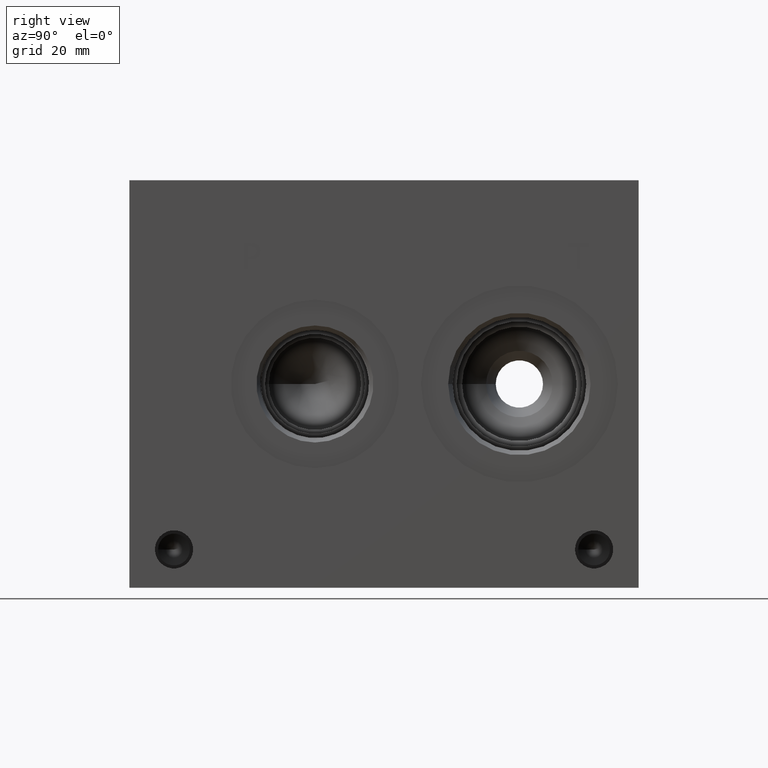
[diagram: clean part render]
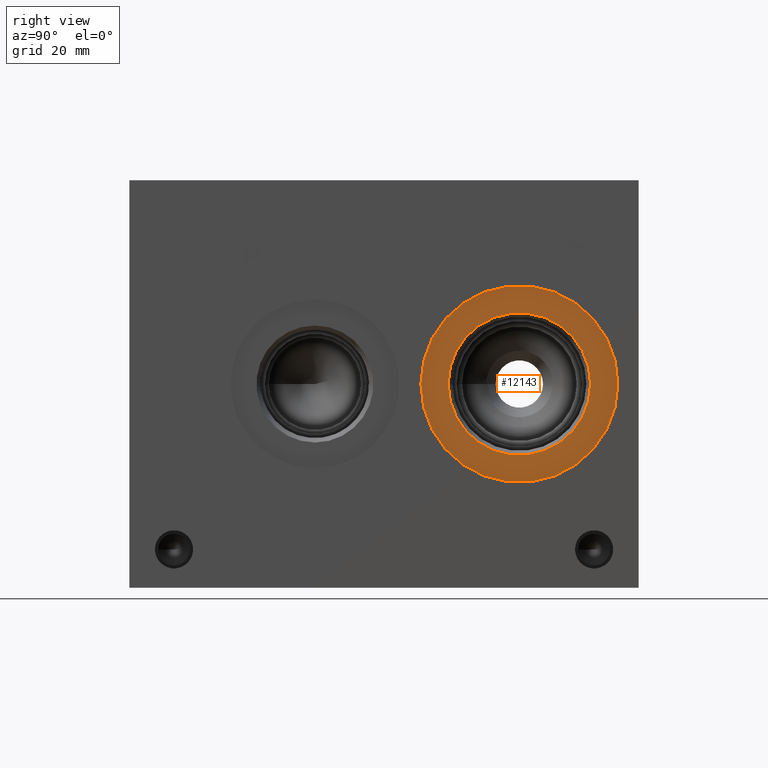
[diagram: same view with one face highlighted and labeled with its STEP entity id]
A machine part, right view. The second image highlights one B-rep face of the part: STEP entity #12143.
In plain terms, the highlighted planar face has unit normal (1, 0, 0).
Its self-contained STEP definition (entity closure, byte-faithful):
#183=CIRCLE('',#12687,24.5618);
#184=CIRCLE('',#12688,24.5618);
#185=CIRCLE('',#12689,17.7546);
#891=FACE_BOUND('',#2117,.T.);
#1431=FACE_OUTER_BOUND('',#2116,.T.);
#2116=EDGE_LOOP('',(#10192,#10193));
#2117=EDGE_LOOP('',(#10194));
#5511=VERTEX_POINT('',#20482);
#5512=VERTEX_POINT('',#20483);
#5513=VERTEX_POINT('',#20486);
#7134=EDGE_CURVE('',#5511,#5512,#183,.T.);
#7135=EDGE_CURVE('',#5512,#5511,#184,.T.);
#7136=EDGE_CURVE('',#5513,#5513,#185,.T.);
#10192=ORIENTED_EDGE('',*,*,#7134,.T.);
#10193=ORIENTED_EDGE('',*,*,#7135,.T.);
#10194=ORIENTED_EDGE('',*,*,#7136,.F.);
#11131=PLANE('',#12686);
#12143=ADVANCED_FACE('',(#1431,#891),#11131,.T.);
#12686=AXIS2_PLACEMENT_3D('',#20481,#14859,#14860);
#12687=AXIS2_PLACEMENT_3D('',#20484,#14861,#14862);
#12688=AXIS2_PLACEMENT_3D('',#20485,#14863,#14864);
#12689=AXIS2_PLACEMENT_3D('',#20487,#14865,#14866);
#14859=DIRECTION('center_axis',(1.,0.,0.));
#14860=DIRECTION('ref_axis',(0.,1.,0.));
#14861=DIRECTION('center_axis',(1.,0.,0.));
#14862=DIRECTION('ref_axis',(0.,1.,0.));
#14863=DIRECTION('center_axis',(1.,0.,0.));
#14864=DIRECTION('ref_axis',(0.,1.,0.));
#14865=DIRECTION('center_axis',(1.,0.,0.));
#14866=DIRECTION('ref_axis',(0.,1.,0.));
#20481=CARTESIAN_POINT('Origin',(81.7626,97.2566,50.8));
#20482=CARTESIAN_POINT('',(81.7626,121.8184,50.8));
#20483=CARTESIAN_POINT('',(81.7626,72.6948,50.8));
#20484=CARTESIAN_POINT('Origin',(81.7626,97.2566,50.8));
#20485=CARTESIAN_POINT('Origin',(81.7626,97.2566,50.8));
#20486=CARTESIAN_POINT('',(81.7626,79.502,50.8));
#20487=CARTESIAN_POINT('Origin',(81.7626,97.2566,50.8));